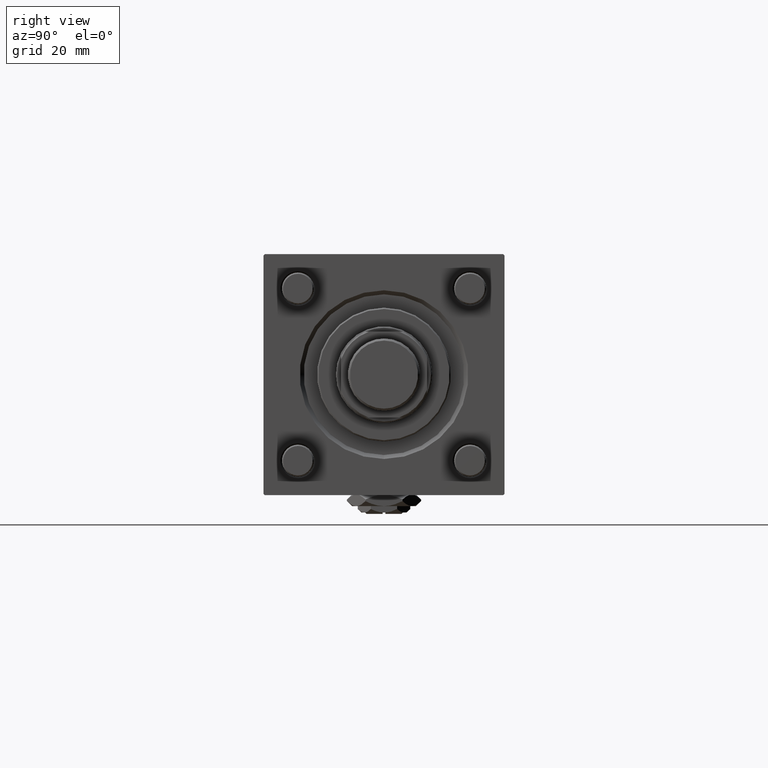
[diagram: clean part render]
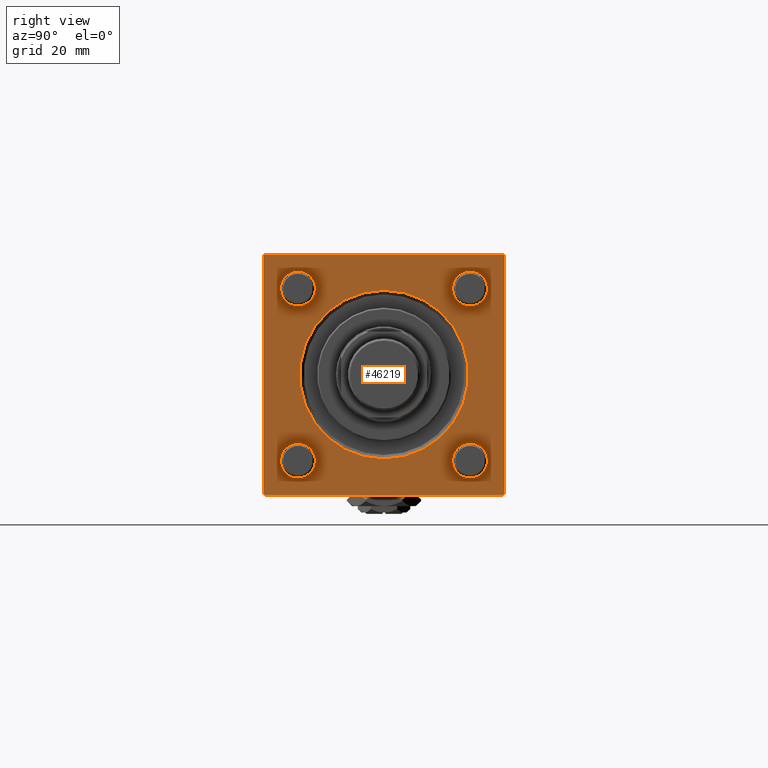
[diagram: same view with one face highlighted and labeled with its STEP entity id]
A machine part, right view. The second image highlights one B-rep face of the part: STEP entity #46219.
In plain terms, the highlighted planar face has unit normal (-1, 0, 0).
Its self-contained STEP definition (entity closure, byte-faithful):
#42 = ORIENTED_EDGE ( 'NONE', *, *, #18722, .F. ) ;
#398 = ORIENTED_EDGE ( 'NONE', *, *, #49116, .T. ) ;
#444 = DIRECTION ( 'NONE',  ( 0.000000000000000000, 0.000000000000000000, 1.000000000000000000 ) ) ;
#756 = DIRECTION ( 'NONE',  ( 0.000000000000000000, -1.000000000000000000, -1.541976423090495140E-16 ) ) ;
#1031 = DIRECTION ( 'NONE',  ( -1.000000000000000000, -0.000000000000000000, -0.000000000000000000 ) ) ;
#2171 = CIRCLE ( 'NONE', #10733, 6.500000000000061284 ) ;
#2374 = AXIS2_PLACEMENT_3D ( 'NONE', #27000, #32635, #36240 ) ;
#2386 = DIRECTION ( 'NONE',  ( -0.000000000000000000, 0.000000000000000000, 1.000000000000000000 ) ) ;
#2437 = VECTOR ( 'NONE', #756, 1000.000000000000000 ) ;
#2589 = AXIS2_PLACEMENT_3D ( 'NONE', #55820, #10544, #9953 ) ;
#2871 = LINE ( 'NONE', #3766, #42553 ) ;
#2981 = FACE_BOUND ( 'NONE', #23800, .T. ) ;
#3281 = FACE_BOUND ( 'NONE', #30047, .T. ) ;
#3588 = DIRECTION ( 'NONE',  ( -1.000000000000000000, -0.000000000000000000, -0.000000000000000000 ) ) ;
#3766 = CARTESIAN_POINT ( 'NONE',  ( 155.0000000000000000, 44.49999999999998579, 45.00000000000000000 ) ) ;
#4316 = CARTESIAN_POINT ( 'NONE',  ( 155.0000000000000000, 32.14999999999999147, 38.65000000000007674 ) ) ;
#5050 = EDGE_CURVE ( 'NONE', #6007, #46363, #30951, .T. ) ;
#5235 = CIRCLE ( 'NONE', #37686, 6.500000000000061284 ) ;
#5304 = CARTESIAN_POINT ( 'NONE',  ( 155.0000000000000000, 32.14999999999999147, 32.15000000000000568 ) ) ;
#5405 = EDGE_CURVE ( 'NONE', #35261, #25054, #42765, .T. ) ;
#5974 = VECTOR ( 'NONE', #33568, 1000.000000000000114 ) ;
#6007 = VERTEX_POINT ( 'NONE', #32939 ) ;
#6478 = CARTESIAN_POINT ( 'NONE',  ( 155.0000000000000000, -45.00000000000000000, 44.49999999999995737 ) ) ;
#6600 = VERTEX_POINT ( 'NONE', #42327 ) ;
#7418 = CARTESIAN_POINT ( 'NONE',  ( 155.0000000000000000, 32.14999999999999147, 32.15000000000000568 ) ) ;
#7704 = VERTEX_POINT ( 'NONE', #29583 ) ;
#7869 = DIRECTION ( 'NONE',  ( 0.000000000000000000, 0.000000000000000000, -1.000000000000000000 ) ) ;
#8037 = VERTEX_POINT ( 'NONE', #37505 ) ;
#8164 = CARTESIAN_POINT ( 'NONE',  ( 155.0000000000000000, 45.00000000000001421, 45.00000000000000000 ) ) ;
#8239 = ORIENTED_EDGE ( 'NONE', *, *, #54387, .T. ) ;
#8242 = CIRCLE ( 'NONE', #39615, 6.500000000000061284 ) ;
#9138 = AXIS2_PLACEMENT_3D ( 'NONE', #26692, #58857, #21636 ) ;
#9266 = AXIS2_PLACEMENT_3D ( 'NONE', #14741, #18051, #444 ) ;
#9701 = EDGE_CURVE ( 'NONE', #49677, #29566, #37229, .T. ) ;
#9953 = DIRECTION ( 'NONE',  ( 0.000000000000000000, 0.000000000000000000, 1.000000000000000000 ) ) ;
#10462 = CARTESIAN_POINT ( 'NONE',  ( 155.0000000000000000, -44.49999999999992895, -45.00000000000000000 ) ) ;
#10544 = DIRECTION ( 'NONE',  ( -1.000000000000000000, -0.000000000000000000, -0.000000000000000000 ) ) ;
#10733 = AXIS2_PLACEMENT_3D ( 'NONE', #19124, #16351, #23599 ) ;
#11197 = EDGE_CURVE ( 'NONE', #28080, #34662, #45279, .T. ) ;
#11534 = EDGE_CURVE ( 'NONE', #17933, #6600, #44203, .T. ) ;
#12183 = DIRECTION ( 'NONE',  ( -1.000000000000000000, -0.000000000000000000, -0.000000000000000000 ) ) ;
#12238 = PLANE ( 'NONE',  #57596 ) ;
#12478 = VERTEX_POINT ( 'NONE', #34608 ) ;
#12528 = FACE_OUTER_BOUND ( 'NONE', #22347, .T. ) ;
#13884 = ORIENTED_EDGE ( 'NONE', *, *, #29369, .T. ) ;
#14221 = AXIS2_PLACEMENT_3D ( 'NONE', #7418, #12183, #30041 ) ;
#14623 = LINE ( 'NONE', #10462, #52965 ) ;
#14741 = CARTESIAN_POINT ( 'NONE',  ( 155.0000000000000000, -32.14999999999997726, 32.15000000000001279 ) ) ;
#14814 = VECTOR ( 'NONE', #7869, 1000.000000000000000 ) ;
#15132 = ORIENTED_EDGE ( 'NONE', *, *, #49575, .T. ) ;
#15144 = CIRCLE ( 'NONE', #14221, 6.500000000000061284 ) ;
#15467 = EDGE_CURVE ( 'NONE', #17933, #35261, #2871, .T. ) ;
#15479 = DIRECTION ( 'NONE',  ( 0.000000000000000000, 0.000000000000000000, 1.000000000000000000 ) ) ;
#15752 = ORIENTED_EDGE ( 'NONE', *, *, #36888, .T. ) ;
#15800 = FACE_BOUND ( 'NONE', #40273, .T. ) ;
#15881 = ORIENTED_EDGE ( 'NONE', *, *, #5405, .T. ) ;
#16351 = DIRECTION ( 'NONE',  ( -1.000000000000000000, -0.000000000000000000, -0.000000000000000000 ) ) ;
#16415 = EDGE_CURVE ( 'NONE', #20185, #56480, #47312, .T. ) ;
#17933 = VERTEX_POINT ( 'NONE', #30150 ) ;
#18051 = DIRECTION ( 'NONE',  ( -1.000000000000000000, -0.000000000000000000, -0.000000000000000000 ) ) ;
#18722 = EDGE_CURVE ( 'NONE', #8037, #7704, #57814, .T. ) ;
#19083 = DIRECTION ( 'NONE',  ( 0.000000000000000000, 0.7071067811865524577, -0.7071067811865426878 ) ) ;
#19124 = CARTESIAN_POINT ( 'NONE',  ( 155.0000000000000000, -32.14999999999997726, 32.15000000000001279 ) ) ;
#20085 = DIRECTION ( 'NONE',  ( 0.000000000000000000, 0.000000000000000000, 1.000000000000000000 ) ) ;
#20185 = VERTEX_POINT ( 'NONE', #47049 ) ;
#20243 = DIRECTION ( 'NONE',  ( -1.000000000000000000, -0.000000000000000000, -0.000000000000000000 ) ) ;
#20864 = DIRECTION ( 'NONE',  ( -1.000000000000000000, 0.000000000000000000, -0.000000000000000000 ) ) ;
#21153 = FACE_BOUND ( 'NONE', #39864, .T. ) ;
#21636 = DIRECTION ( 'NONE',  ( 0.000000000000000000, 0.000000000000000000, 1.000000000000000000 ) ) ;
#22242 = CARTESIAN_POINT ( 'NONE',  ( 155.0000000000000000, -32.14999999999997726, -25.64999999999994884 ) ) ;
#22347 = EDGE_LOOP ( 'NONE', ( #34233, #8239, #42, #15752, #44905, #32400, #15881, #53284 ) ) ;
#23058 = VECTOR ( 'NONE', #44786, 1000.000000000000114 ) ;
#23599 = DIRECTION ( 'NONE',  ( 0.000000000000000000, 0.000000000000000000, 1.000000000000000000 ) ) ;
#23800 = EDGE_LOOP ( 'NONE', ( #38491, #28279 ) ) ;
#24276 = CARTESIAN_POINT ( 'NONE',  ( 155.0000000000000000, -45.00000000000000000, 44.49999999999995737 ) ) ;
#25015 = CARTESIAN_POINT ( 'NONE',  ( 155.0000000000000000, -32.14999999999997726, 25.64999999999994884 ) ) ;
#25054 = VERTEX_POINT ( 'NONE', #46744 ) ;
#26048 = CARTESIAN_POINT ( 'NONE',  ( 155.0000000000000000, 0.000000000000000000, -31.50000000000000000 ) ) ;
#26692 = CARTESIAN_POINT ( 'NONE',  ( 155.0000000000000000, -32.14999999999997726, -32.15000000000001279 ) ) ;
#26849 = EDGE_CURVE ( 'NONE', #43764, #39181, #15144, .T. ) ;
#27000 = CARTESIAN_POINT ( 'NONE',  ( 155.0000000000000000, 0.000000000000000000, 0.000000000000000000 ) ) ;
#28080 = VERTEX_POINT ( 'NONE', #41555 ) ;
#28279 = ORIENTED_EDGE ( 'NONE', *, *, #26849, .T. ) ;
#29369 = EDGE_CURVE ( 'NONE', #34970, #12478, #50441, .T. ) ;
#29566 = VERTEX_POINT ( 'NONE', #35399 ) ;
#29583 = CARTESIAN_POINT ( 'NONE',  ( 155.0000000000000000, -44.49999999999990052, -45.00000000000000000 ) ) ;
#30041 = DIRECTION ( 'NONE',  ( 0.000000000000000000, 0.000000000000000000, 1.000000000000000000 ) ) ;
#30047 = EDGE_LOOP ( 'NONE', ( #55279, #398 ) ) ;
#30150 = CARTESIAN_POINT ( 'NONE',  ( 155.0000000000000000, 45.00000000000001421, 44.49999999999997158 ) ) ;
#30685 = FACE_BOUND ( 'NONE', #52071, .T. ) ;
#30951 = CIRCLE ( 'NONE', #48035, 6.500000000000061284 ) ;
#31536 = DIRECTION ( 'NONE',  ( 0.000000000000000000, 0.000000000000000000, 1.000000000000000000 ) ) ;
#32400 = ORIENTED_EDGE ( 'NONE', *, *, #15467, .T. ) ;
#32635 = DIRECTION ( 'NONE',  ( -1.000000000000000000, -0.000000000000000000, -0.000000000000000000 ) ) ;
#32939 = CARTESIAN_POINT ( 'NONE',  ( 155.0000000000000000, 32.14999999999999147, -25.64999999999994529 ) ) ;
#33365 = CARTESIAN_POINT ( 'NONE',  ( 155.0000000000000000, -32.14999999999997726, -32.15000000000001279 ) ) ;
#33568 = DIRECTION ( 'NONE',  ( -0.000000000000000000, -0.7071067811865474617, -0.7071067811865474617 ) ) ;
#34233 = ORIENTED_EDGE ( 'NONE', *, *, #9701, .T. ) ;
#34608 = CARTESIAN_POINT ( 'NONE',  ( 155.0000000000000000, 3.857637417314162689E-15, 31.50000000000000000 ) ) ;
#34662 = VERTEX_POINT ( 'NONE', #22242 ) ;
#34970 = VERTEX_POINT ( 'NONE', #26048 ) ;
#35175 = DIRECTION ( 'NONE',  ( 0.000000000000000000, -1.000000000000000000, 0.000000000000000000 ) ) ;
#35261 = VERTEX_POINT ( 'NONE', #44459 ) ;
#35399 = CARTESIAN_POINT ( 'NONE',  ( 155.0000000000000000, -44.99999999999999289, -44.49999999999991473 ) ) ;
#35428 = CARTESIAN_POINT ( 'NONE',  ( 155.0000000000000000, 32.14999999999999147, 25.64999999999994529 ) ) ;
#36240 = DIRECTION ( 'NONE',  ( 0.000000000000000000, 0.000000000000000000, 1.000000000000000000 ) ) ;
#36888 = EDGE_CURVE ( 'NONE', #8037, #6600, #54305, .T. ) ;
#37229 = LINE ( 'NONE', #55697, #41533 ) ;
#37505 = CARTESIAN_POINT ( 'NONE',  ( 155.0000000000000000, 44.50000000000001421, -45.00000000000000000 ) ) ;
#37686 = AXIS2_PLACEMENT_3D ( 'NONE', #33365, #20243, #15479 ) ;
#38072 = AXIS2_PLACEMENT_3D ( 'NONE', #49461, #3588, #39338 ) ;
#38463 = EDGE_CURVE ( 'NONE', #25054, #49677, #52052, .T. ) ;
#38491 = ORIENTED_EDGE ( 'NONE', *, *, #48459, .T. ) ;
#38854 = VECTOR ( 'NONE', #35175, 1000.000000000000000 ) ;
#39113 = EDGE_CURVE ( 'NONE', #56480, #20185, #2171, .T. ) ;
#39181 = VERTEX_POINT ( 'NONE', #35428 ) ;
#39338 = DIRECTION ( 'NONE',  ( 0.000000000000000000, 0.000000000000000000, 1.000000000000000000 ) ) ;
#39615 = AXIS2_PLACEMENT_3D ( 'NONE', #5304, #54194, #31536 ) ;
#39864 = EDGE_LOOP ( 'NONE', ( #56981, #51239 ) ) ;
#40273 = EDGE_LOOP ( 'NONE', ( #58644, #50820 ) ) ;
#40398 = DIRECTION ( 'NONE',  ( 0.000000000000000000, -0.7071067811865474617, 0.7071067811865474617 ) ) ;
#40517 = CARTESIAN_POINT ( 'NONE',  ( 155.0000000000000000, 32.14999999999999147, -38.65000000000006963 ) ) ;
#41533 = VECTOR ( 'NONE', #42585, 1000.000000000000000 ) ;
#41555 = CARTESIAN_POINT ( 'NONE',  ( 155.0000000000000000, -32.14999999999997726, -38.65000000000007674 ) ) ;
#41856 = CARTESIAN_POINT ( 'NONE',  ( 155.0000000000000000, 32.14999999999999147, -32.15000000000000568 ) ) ;
#42327 = CARTESIAN_POINT ( 'NONE',  ( 155.0000000000000000, 45.00000000000001421, -44.49999999999997158 ) ) ;
#42553 = VECTOR ( 'NONE', #40398, 1000.000000000000114 ) ;
#42585 = DIRECTION ( 'NONE',  ( 0.000000000000000000, 7.709882115452478166E-17, -1.000000000000000000 ) ) ;
#42765 = LINE ( 'NONE', #55868, #2437 ) ;
#43512 = CARTESIAN_POINT ( 'NONE',  ( 155.0000000000000000, 0.000000000000000000, 0.000000000000000000 ) ) ;
#43764 = VERTEX_POINT ( 'NONE', #4316 ) ;
#44203 = LINE ( 'NONE', #8164, #14814 ) ;
#44459 = CARTESIAN_POINT ( 'NONE',  ( 155.0000000000000000, 44.49999999999998579, 45.00000000000000000 ) ) ;
#44786 = DIRECTION ( 'NONE',  ( -0.000000000000000000, 0.7071067811865474617, 0.7071067811865474617 ) ) ;
#44905 = ORIENTED_EDGE ( 'NONE', *, *, #11534, .F. ) ;
#45225 = CIRCLE ( 'NONE', #2374, 31.50000000000000000 ) ;
#45279 = CIRCLE ( 'NONE', #9138, 6.500000000000061284 ) ;
#46219 = ADVANCED_FACE ( 'NONE', ( #3281, #15800, #2981, #21153, #30685, #12528 ), #12238, .F. ) ;
#46363 = VERTEX_POINT ( 'NONE', #40517 ) ;
#46744 = CARTESIAN_POINT ( 'NONE',  ( 155.0000000000000000, -44.49999999999994316, 44.99999999999998579 ) ) ;
#47049 = CARTESIAN_POINT ( 'NONE',  ( 155.0000000000000000, -32.14999999999997726, 38.65000000000007674 ) ) ;
#47312 = CIRCLE ( 'NONE', #9266, 6.500000000000061284 ) ;
#48035 = AXIS2_PLACEMENT_3D ( 'NONE', #41856, #1031, #20085 ) ;
#48459 = EDGE_CURVE ( 'NONE', #39181, #43764, #8242, .T. ) ;
#49116 = EDGE_CURVE ( 'NONE', #34662, #28080, #5235, .T. ) ;
#49174 = CARTESIAN_POINT ( 'NONE',  ( 155.0000000000000000, 45.00000000000001421, -45.00000000000000000 ) ) ;
#49461 = CARTESIAN_POINT ( 'NONE',  ( 155.0000000000000000, 0.000000000000000000, 0.000000000000000000 ) ) ;
#49575 = EDGE_CURVE ( 'NONE', #12478, #34970, #45225, .T. ) ;
#49677 = VERTEX_POINT ( 'NONE', #24276 ) ;
#50441 = CIRCLE ( 'NONE', #38072, 31.50000000000000000 ) ;
#50820 = ORIENTED_EDGE ( 'NONE', *, *, #5050, .T. ) ;
#51239 = ORIENTED_EDGE ( 'NONE', *, *, #16415, .T. ) ;
#52052 = LINE ( 'NONE', #6478, #5974 ) ;
#52071 = EDGE_LOOP ( 'NONE', ( #13884, #15132 ) ) ;
#52965 = VECTOR ( 'NONE', #19083, 1000.000000000000000 ) ;
#53284 = ORIENTED_EDGE ( 'NONE', *, *, #38463, .T. ) ;
#53990 = CIRCLE ( 'NONE', #2589, 6.500000000000061284 ) ;
#54194 = DIRECTION ( 'NONE',  ( -1.000000000000000000, -0.000000000000000000, -0.000000000000000000 ) ) ;
#54305 = LINE ( 'NONE', #58765, #23058 ) ;
#54387 = EDGE_CURVE ( 'NONE', #29566, #7704, #14623, .T. ) ;
#54904 = EDGE_CURVE ( 'NONE', #46363, #6007, #53990, .T. ) ;
#55279 = ORIENTED_EDGE ( 'NONE', *, *, #11197, .T. ) ;
#55697 = CARTESIAN_POINT ( 'NONE',  ( 155.0000000000000000, -45.00000000000000000, 44.99999999999998579 ) ) ;
#55820 = CARTESIAN_POINT ( 'NONE',  ( 155.0000000000000000, 32.14999999999999147, -32.15000000000000568 ) ) ;
#55868 = CARTESIAN_POINT ( 'NONE',  ( 155.0000000000000000, 45.00000000000001421, 45.00000000000000000 ) ) ;
#56480 = VERTEX_POINT ( 'NONE', #25015 ) ;
#56981 = ORIENTED_EDGE ( 'NONE', *, *, #39113, .T. ) ;
#57596 = AXIS2_PLACEMENT_3D ( 'NONE', #43512, #20864, #2386 ) ;
#57814 = LINE ( 'NONE', #49174, #38854 ) ;
#58644 = ORIENTED_EDGE ( 'NONE', *, *, #54904, .T. ) ;
#58765 = CARTESIAN_POINT ( 'NONE',  ( 155.0000000000000000, 45.00000000000001421, -44.50000000000000000 ) ) ;
#58857 = DIRECTION ( 'NONE',  ( -1.000000000000000000, -0.000000000000000000, -0.000000000000000000 ) ) ;